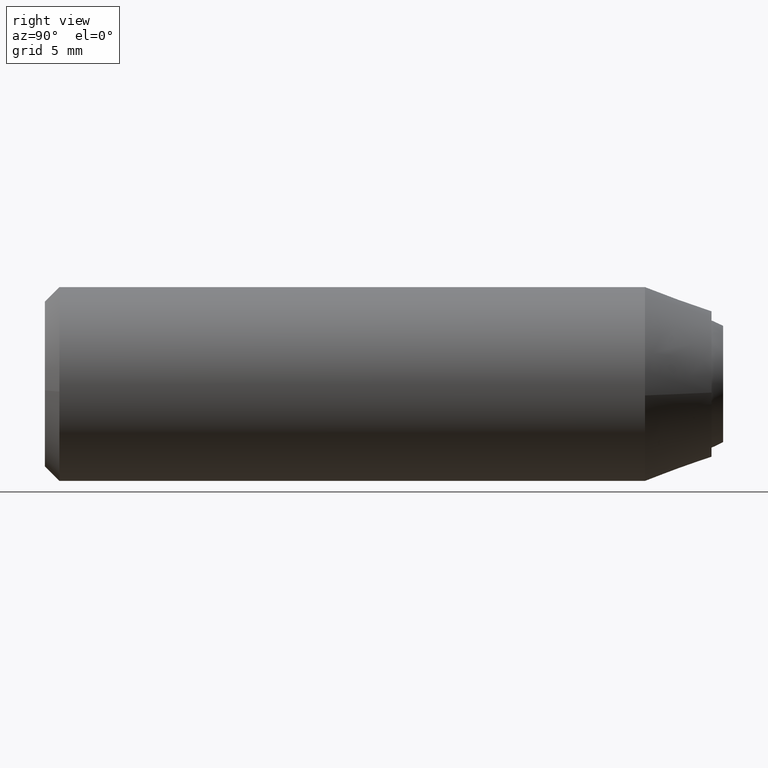
[diagram: clean part render]
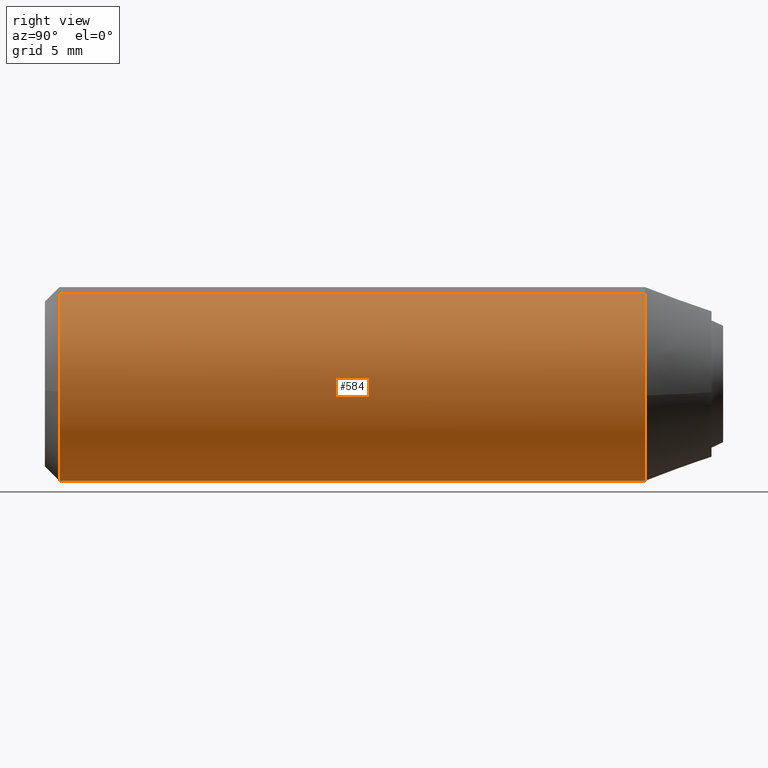
[diagram: same view with one face highlighted and labeled with its STEP entity id]
A machine part, right view. The second image highlights one B-rep face of the part: STEP entity #584.
In plain terms, the highlighted face is a freeform B-spline surface patch.
Its self-contained STEP definition (entity closure, byte-faithful):
#248=CARTESIAN_POINT('',(0.0,-33.649999999999999,-5.000000000000001));
#249=VERTEX_POINT('',#248);
#250=CARTESIAN_POINT('',(4.984586668667491,-33.649999999995323,-0.392295478675378));
#251=VERTEX_POINT('',#250);
#252=CARTESIAN_POINT('',(0.0,-33.649999999999999,-5.000000000000001));
#253=CARTESIAN_POINT('',(4.621952458224471,-33.649999999999999,-5.000000000000001));
#254=CARTESIAN_POINT('',(4.984586668667491,-33.649999999995316,-0.392295478675378));
#262=(BOUNDED_CURVE()B_SPLINE_CURVE(2,(#252,#253,#254),.UNSPECIFIED.,.F.,.U.)B_SPLINE_CURVE_WITH_KNOTS((3,3),(0.0,0.236331300630306),.UNSPECIFIED.)CURVE()GEOMETRIC_REPRESENTATION_ITEM()RATIONAL_B_SPLINE_CURVE((1.0,0.723120658608080,0.969723356166679))REPRESENTATION_ITEM(''));
#263=EDGE_CURVE('',#249,#251,#262,.T.);
#311=CARTESIAN_POINT('',(-4.990673992107780,-33.649999999999999,0.305242697699694));
#312=VERTEX_POINT('',#311);
#326=CARTESIAN_POINT('',(-4.990673992107780,-33.650000000000006,0.305242697699694));
#327=CARTESIAN_POINT('',(-5.000000000000001,-33.649999999999999,0.152763816518425));
#328=CARTESIAN_POINT('',(-5.0,-33.649999999999999,-7.898711E-016));
#329=CARTESIAN_POINT('',(-5.000000000000001,-33.650000000000006,-5.000000000000002));
#330=CARTESIAN_POINT('',(0.0,-33.649999999999999,-5.000000000000001));
#338=(BOUNDED_CURVE()B_SPLINE_CURVE(2,(#326,#327,#328,#329,#330),.UNSPECIFIED.,.F.,.U.)B_SPLINE_CURVE_WITH_KNOTS((3,2,3),(0.739332962240211,0.750000000000000,1.0),.UNSPECIFIED.)CURVE()GEOMETRIC_REPRESENTATION_ITEM()RATIONAL_B_SPLINE_CURVE((0.976072041669436,0.987502787901323,1.0,0.707106781186548,1.0))REPRESENTATION_ITEM(''));
#339=EDGE_CURVE('',#312,#249,#338,.T.);
#362=CARTESIAN_POINT('',(1.758086609779861,-33.649999999999991,4.680719119163272));
#363=VERTEX_POINT('',#362);
#364=CARTESIAN_POINT('',(4.984586668667491,-33.649999999995316,-0.392295478675378));
#365=CARTESIAN_POINT('',(4.999999999999999,-33.649999999999999,-0.196450535074298));
#366=CARTESIAN_POINT('',(5.0,-33.649999999999999,-7.898711E-016));
#367=CARTESIAN_POINT('',(5.0,-33.649999999999999,3.463050556640162));
#368=CARTESIAN_POINT('',(1.758086609779862,-33.649999999999991,4.680719119163272));
#376=(BOUNDED_CURVE()B_SPLINE_CURVE(2,(#364,#365,#366,#367,#368),.UNSPECIFIED.,.F.,.U.)B_SPLINE_CURVE_WITH_KNOTS((3,2,3),(0.236331300630306,0.250000000000000,0.440284280980439),.UNSPECIFIED.)CURVE()GEOMETRIC_REPRESENTATION_ITEM()RATIONAL_B_SPLINE_CURVE((0.969723356166679,0.983986122578467,1.0,0.777068097816143,0.893499689349541))REPRESENTATION_ITEM(''));
#377=EDGE_CURVE('',#251,#363,#376,.T.);
#460=CARTESIAN_POINT('',(1.758085411978979,-3.434346999999992,4.680719569058159));
#461=VERTEX_POINT('',#460);
#477=CARTESIAN_POINT('',(-4.990673992109441,-3.434347000007194,0.305242697693963));
#478=VERTEX_POINT('',#477);
#492=CARTESIAN_POINT('',(-4.990673992109441,-3.434347000007194,0.305242697693963));
#493=CARTESIAN_POINT('',(-4.990673992107780,-33.649999999999999,0.305242697699694));
#494=QUASI_UNIFORM_CURVE('',1,(#492,#493),.UNSPECIFIED.,.F.,.U.);
#495=EDGE_CURVE('',#478,#312,#494,.T.);
#500=CARTESIAN_POINT('',(1.758085411978979,-3.434346999999992,4.680719569058159));
#501=CARTESIAN_POINT('',(1.758086609779861,-33.649999999999991,4.680719119163272));
#502=QUASI_UNIFORM_CURVE('',1,(#500,#501),.UNSPECIFIED.,.F.,.U.);
#503=EDGE_CURVE('',#461,#363,#502,.T.);
#508=CARTESIAN_POINT('',(-4.990673992109334,-2.678955674999998,0.305242697674284));
#509=CARTESIAN_POINT('',(-5.295916689783620,-2.678955674999999,-4.685431294435050));
#510=CARTESIAN_POINT('',(-0.305242697674285,-2.678955674999998,-4.990673992109334));
#511=CARTESIAN_POINT('',(4.685431294435048,-2.678955674999999,-5.295916689783620));
#512=CARTESIAN_POINT('',(4.990673992109334,-2.678955674999998,-0.305242697674286));
#513=CARTESIAN_POINT('',(5.216186114346709,-2.678955674999998,3.381847909015324));
#514=CARTESIAN_POINT('',(1.758089871957861,-2.678955674999998,4.680717893883286));
#515=CARTESIAN_POINT('',(-4.990673992109334,-34.424276108124999,0.305242697674284));
#516=CARTESIAN_POINT('',(-5.295916689783620,-34.424276108124999,-4.685431294435050));
#517=CARTESIAN_POINT('',(-0.305242697674285,-34.424276108124999,-4.990673992109334));
#518=CARTESIAN_POINT('',(4.685431294435048,-34.424276108124999,-5.295916689783620));
#519=CARTESIAN_POINT('',(4.990673992109334,-34.424276108124999,-0.305242697674286));
#520=CARTESIAN_POINT('',(5.216186114346709,-34.424276108125007,3.381847909015324));
#521=CARTESIAN_POINT('',(1.758089871957861,-34.424276108124999,4.680717893883286));
#529=(BOUNDED_SURFACE()B_SPLINE_SURFACE(2,1,((#508,#515),(#509,#516),(#510,#517),(#511,#518),(#512,#519),(#513,#520),(#514,#521)),.UNSPECIFIED.,.F.,.F.,.U.)B_SPLINE_SURFACE_WITH_KNOTS((3,2,2,3),(2,2),(0.0,8.284271247461899,16.568542494923800,23.195959492893319),(0.0,31.745320433125009),.UNSPECIFIED.)GEOMETRIC_REPRESENTATION_ITEM()RATIONAL_B_SPLINE_SURFACE(((1.0,1.0),(0.707106781186548,0.707106781186548),(1.0,1.0),(0.707106781186548,0.707106781186548),(1.0,1.0),(0.765685424949238,0.765685424949238),(0.906274169979695,0.906274169979695)))REPRESENTATION_ITEM('')SURFACE());
#530=CARTESIAN_POINT('',(4.965047631817228,-3.434347000004106,-0.590171173305738));
#531=VERTEX_POINT('',#530);
#532=CARTESIAN_POINT('',(4.965047631817228,-3.434347000004106,-0.590171173305738));
#533=CARTESIAN_POINT('',(5.000000000000001,-3.434347000000000,-0.296120598281550));
#534=CARTESIAN_POINT('',(5.0,-3.434347000000000,-7.898711E-016));
#535=CARTESIAN_POINT('',(5.0,-3.434347000000000,3.463051503287431));
#536=CARTESIAN_POINT('',(1.758085411978979,-3.434346999999991,4.680719569058159));
#544=(BOUNDED_CURVE()B_SPLINE_CURVE(2,(#532,#533,#534,#535,#536),.UNSPECIFIED.,.F.,.U.)B_SPLINE_CURVE_WITH_KNOTS((3,2,3),(0.229562473514162,0.250000000000000,0.440284321399975),.UNSPECIFIED.)CURVE()GEOMETRIC_REPRESENTATION_ITEM()RATIONAL_B_SPLINE_CURVE((0.956026754184981,0.976055948331911,1.0,0.777068050461711,0.893499738813557))REPRESENTATION_ITEM(''));
#545=EDGE_CURVE('',#531,#461,#544,.T.);
#546=ORIENTED_EDGE('',*,*,#545,.T.);
#547=ORIENTED_EDGE('',*,*,#503,.T.);
#548=ORIENTED_EDGE('',*,*,#377,.F.);
#549=ORIENTED_EDGE('',*,*,#263,.F.);
#550=ORIENTED_EDGE('',*,*,#339,.F.);
#551=ORIENTED_EDGE('',*,*,#495,.F.);
#552=CARTESIAN_POINT('',(0.0,-3.434347000000000,-5.000000000000001));
#553=VERTEX_POINT('',#552);
#554=CARTESIAN_POINT('',(-4.990673992109441,-3.434347000007194,0.305242697693963));
#555=CARTESIAN_POINT('',(-4.999999999999999,-3.434347000000000,0.152763816532252));
#556=CARTESIAN_POINT('',(-5.0,-3.434347000000000,-7.898711E-016));
#557=CARTESIAN_POINT('',(-5.000000000000001,-3.434347000000000,-5.000000000000002));
#558=CARTESIAN_POINT('',(0.0,-3.434347000000000,-5.000000000000001));
#566=(BOUNDED_CURVE()B_SPLINE_CURVE(2,(#554,#555,#556,#557,#558),.UNSPECIFIED.,.F.,.U.)B_SPLINE_CURVE_WITH_KNOTS((3,2,3),(0.739332962239258,0.750000000000000,1.0),.UNSPECIFIED.)CURVE()GEOMETRIC_REPRESENTATION_ITEM()RATIONAL_B_SPLINE_CURVE((0.976072041667393,0.987502787900206,1.0,0.707106781186548,1.0))REPRESENTATION_ITEM(''));
#567=EDGE_CURVE('',#478,#553,#566,.T.);
#568=ORIENTED_EDGE('',*,*,#567,.T.);
#569=CARTESIAN_POINT('',(0.0,-3.434347000000000,-5.000000000000001));
#570=CARTESIAN_POINT('',(4.440872629717623,-3.434347000000000,-5.000000000000002));
#571=CARTESIAN_POINT('',(4.965047631817228,-3.434347000004106,-0.590171173305738));
#579=(BOUNDED_CURVE()B_SPLINE_CURVE(2,(#569,#570,#571),.UNSPECIFIED.,.F.,.U.)B_SPLINE_CURVE_WITH_KNOTS((3,3),(0.0,0.229562473514162),.UNSPECIFIED.)CURVE()GEOMETRIC_REPRESENTATION_ITEM()RATIONAL_B_SPLINE_CURVE((1.0,0.731050832854636,0.956026754184981))REPRESENTATION_ITEM(''));
#580=EDGE_CURVE('',#553,#531,#579,.T.);
#581=ORIENTED_EDGE('',*,*,#580,.T.);
#582=EDGE_LOOP('',(#546,#547,#548,#549,#550,#551,#568,#581));
#583=FACE_OUTER_BOUND('',#582,.T.);
#584=ADVANCED_FACE('',(#583),#529,.T.);